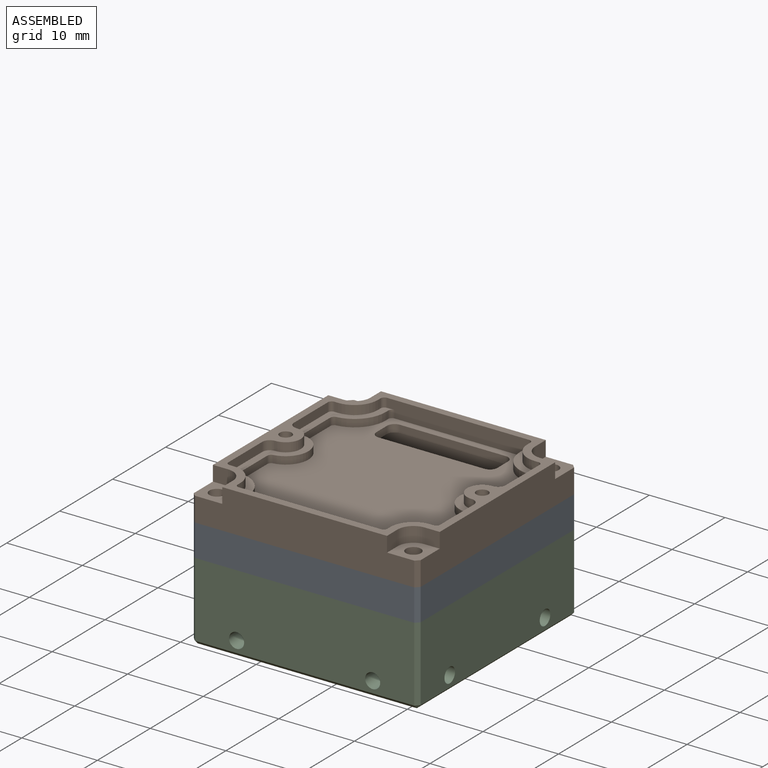
[diagram: assembled view]
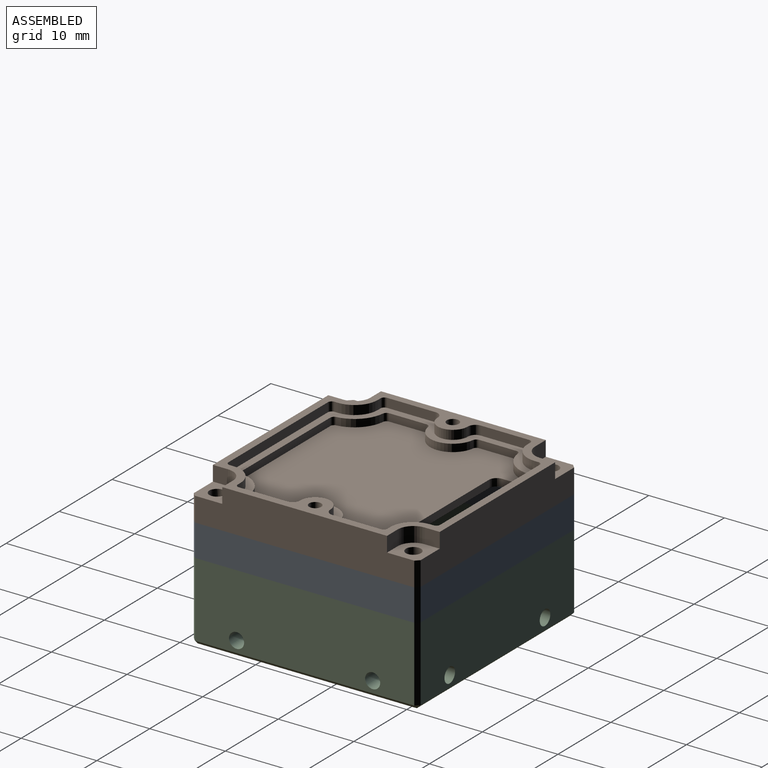
[diagram: assembled view, second angle]
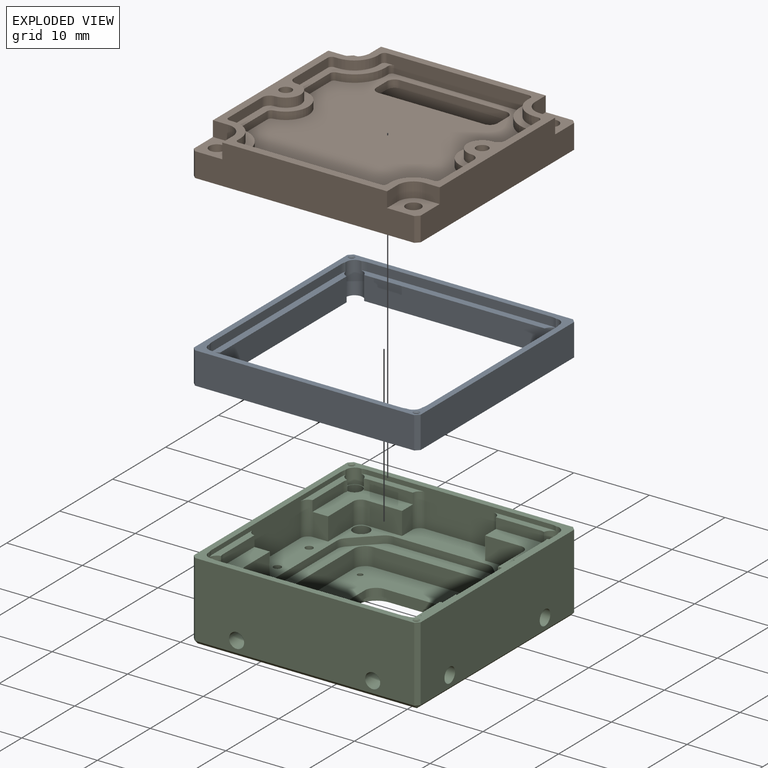
[diagram: exploded view]
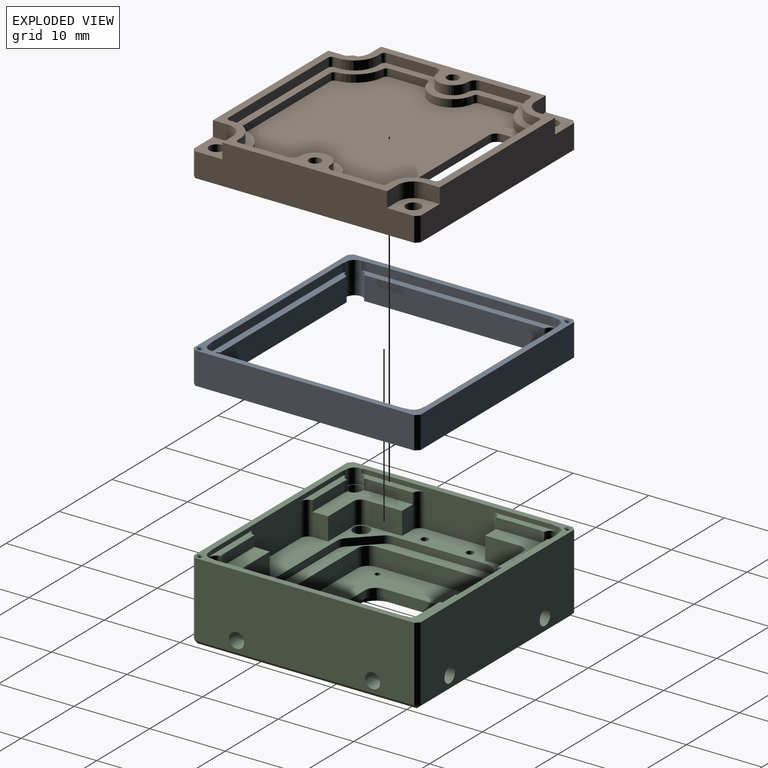
[diagram: exploded view, second angle]
ASSEMBLY  parts=3 mates=2
PART A: 38 faces, bbox 30x4.2x30 mm
  f0: plane 23.88x3.11mm, normal (1,0,0), area 74.2mm2, adj f5,f6,f13,f23
  f1: plane 23.88x3.11mm, normal (0,0,-1), area 74.2mm2, adj f6,f7,f13,f19
  f2: plane 23.88x3.11mm, normal (-1,0,0), area 74.2mm2, adj f7,f8,f13,f30
  f3: plane 23.88x3.11mm, normal (0,0,1), area 74.2mm2, adj f5,f8,f13,f27
  f4: plane 30x30mm, normal (0,1,0), area 94.1mm2, adj f5,f6,f7,f8,f9,f10,f11,f12
  f5: cylinder r=1.1mm len=4.23mm, axis (0,1,0), area 16.5mm2, adj f0,f3,f4,f13,f23,f25,f27,f29
  f6: cylinder r=1.1mm len=4.23mm, axis (0,1,0), area 16.5mm2, adj f0,f1,f4,f13,f19,f21,f23,f24
  f7: cylinder r=1.1mm len=4.23mm, axis (0,1,0), area 16.5mm2, adj f1,f2,f4,f13,f19,f20,f30,f32
  f8: cylinder r=1.1mm len=4.23mm, axis (0,1,0), area 16.5mm2, adj f2,f3,f4,f13,f27,f28,f30,f31
  f9: plane 29x4.23mm, normal (-1,0,0), area 122.7mm2, adj f4,f13,f14,f17
  f10: plane 29x4.23mm, normal (0,0,-1), area 122.7mm2, adj f4,f13,f16,f17
  f11: plane 29x4.23mm, normal (1,0,0), area 122.7mm2, adj f4,f13,f15,f16
  f12: plane 29x4.23mm, normal (0,0,1), area 122.7mm2, adj f4,f13,f14,f15
  f13: plane 30x30mm, normal (0,-1,0), area 182.9mm2, adj f0,f1,f2,f3,f5,f6,f7,f8
  f14: plane 4.23x0.5mm, normal (-0.71,0,0.71), area 3mm2, adj f4,f9,f12,f13
  f15: plane 4.23x0.5mm, normal (0.71,0,0.71), area 3mm2, adj f4,f11,f12,f13
  f16: plane 4.23x0.5mm, normal (0.71,0,-0.71), area 3mm2, adj f4,f10,f11,f13
  f17: plane 4.23x0.5mm, normal (-0.71,0,-0.71), area 3mm2, adj f4,f9,f10,f13
  f18: plane 24.4x1.13mm, normal (0,0,-1), area 27.4mm2, adj f4,f19,f20,f21
  f19: plane 25.71x0.9mm, normal (0,1,0), area 22.1mm2, adj f1,f6,f7,f18,f20,f21
  f20: cylinder r=2mm len=1.13mm, axis (0,1,0), area 0.7mm2, adj f4,f7,f18,f19
  f21: cylinder r=2mm len=1.13mm, axis (0,1,0), area 0.7mm2, adj f4,f6,f18,f19
  f22: plane 24.4x1.13mm, normal (1,0,0), area 27.4mm2, adj f4,f23,f24,f25
  f23: plane 25.71x0.9mm, normal (0,1,0), area 22.1mm2, adj f0,f5,f6,f22,f24,f25
  f24: cylinder r=2mm len=1.13mm, axis (0,1,0), area 0.7mm2, adj f4,f6,f22,f23
  f25: cylinder r=2mm len=1.13mm, axis (0,1,0), area 0.7mm2, adj f4,f5,f22,f23
  f26: plane 24.4x1.13mm, normal (0,0,1), area 27.4mm2, adj f4,f27,f28,f29
  f27: plane 25.71x0.9mm, normal (0,1,0), area 22.1mm2, adj f3,f5,f8,f26,f28,f29
  f28: cylinder r=2mm len=1.13mm, axis (0,1,0), area 0.7mm2, adj f4,f8,f26,f27
  f29: cylinder r=2mm len=1.13mm, axis (0,1,0), area 0.7mm2, adj f4,f5,f26,f27
  f30: plane 25.71x0.9mm, normal (0,1,0), area 22.1mm2, adj f2,f7,f8,f31,f32,f33
  f31: cylinder r=2mm len=1.13mm, axis (0,1,0), area 0.7mm2, adj f4,f8,f30,f33
  f32: cylinder r=2mm len=1.13mm, axis (0,1,0), area 0.7mm2, adj f4,f7,f30,f33
  f33: plane 24.4x1.13mm, normal (-1,0,0), area 27.4mm2, adj f4,f30,f31,f32
  f34: cylinder r=0.3mm len=4.03mm, axis (0,-1,0), area 7.6mm2, adj f13,f36
  f35: cylinder r=0.3mm len=4.03mm, axis (0,-1,0), area 7.6mm2, adj f13,f37
  f36: cone r=0.3mm half-angle=30deg, axis (0,1,0), area 0.5mm2, adj f4,f34
  f37: cone r=0.3mm half-angle=30deg, axis (0,1,0), area 0.5mm2, adj f4,f35
PART B: 110 faces, bbox 30x5.2x30 mm
  f0: plane 1.25x0.3mm, normal (0,-1,0), area 0.3mm2, adj f98,f101
  f1: cylinder r=1mm len=1mm, axis (0,-1,0), area 1.6mm2, adj f2,f8,f95,f99
  f2: plane 14x1mm, normal (-1,0,0), area 14mm2, adj f1,f3,f95,f99
  f3: cylinder r=1mm len=1mm, axis (0,-1,0), area 1.6mm2, adj f2,f4,f95,f99
  f4: plane 2x1mm, normal (0,0,1), area 2mm2, adj f3,f5,f95,f99
  f5: cylinder r=1mm len=1mm, axis (0,-1,0), area 1.6mm2, adj f4,f6,f95,f99
  f6: plane 14x1mm, normal (1,0,0), area 14mm2, adj f5,f7,f95,f99
  f7: cylinder r=1mm len=1mm, axis (0,-1,0), area 1.6mm2, adj f6,f8,f95,f99
  f8: plane 2x1mm, normal (0,0,-1), area 2mm2, adj f1,f7,f95,f99
  f9: cylinder r=1mm len=3.2mm, axis (0,-1,0), area 14.9mm2, adj f22,f35,f99,f100,f103
  f10: cylinder r=1mm len=3.2mm, axis (0,-1,0), area 14.9mm2, adj f22,f26,f99,f100,f101
  f11: plane 29x5.2mm, normal (-1,0,0), area 136.4mm2, adj f17,f19,f20,f22,f27,f28,f31,f34
  f12: plane 29x5.2mm, normal (0,0,-1), area 136.4mm2, adj f17,f20,f21,f22,f25,f26,f27,f29
  f13: plane 29x5.2mm, normal (1,0,0), area 136.4mm2, adj f17,f18,f21,f22,f23,f26,f35,f38
  f14: plane 29x5.2mm, normal (0,0,1), area 136.4mm2, adj f17,f18,f19,f22,f33,f34,f35,f36
  f15: cylinder r=1mm len=3.2mm, axis (0,-1,0), area 14.9mm2, adj f22,f27,f99,f101,f102
  f16: cylinder r=1mm len=3.2mm, axis (0,-1,0), area 14.9mm2, adj f22,f34,f99,f102,f103
  f17: plane 30x30mm, normal (0,-1,0), area 129.4mm2, adj f11,f12,f13,f14,f23,f24,f25,f28
  f18: plane 3.2x0.5mm, normal (0.71,0,0.71), area 2.3mm2, adj f13,f14,f22,f35
  f19: plane 3.2x0.5mm, normal (-0.71,0,0.71), area 2.3mm2, adj f11,f14,f22,f34
  f20: plane 3.2x0.5mm, normal (-0.71,0,-0.71), area 2.3mm2, adj f11,f12,f22,f27
  f21: plane 3.2x0.5mm, normal (0.71,0,-0.71), area 2.3mm2, adj f12,f13,f22,f26
  f22: plane 30x30mm, normal (0,1,0), area 165.3mm2, adj f9,f10,f11,f12,f13,f14,f15,f16
  f23: plane 2x2mm, normal (0,0,-1), area 4mm2, adj f13,f17,f24,f26
  f24: cylinder r=2.1mm len=2.1mm, axis (0,-1,0), area 6.6mm2, adj f17,f23,f25,f26
  f25: plane 2x2mm, normal (1,0,0), area 4mm2, adj f12,f17,f24,f26
  f26: plane 4.1x4.1mm, normal (0,-1,0), area 12.6mm2, adj f10,f12,f13,f21,f23,f24,f25
  f27: plane 4.1x4.1mm, normal (0,-1,0), area 12.6mm2, adj f11,f12,f15,f20,f28,f29,f30
  f28: plane 2x2mm, normal (0,0,-1), area 4mm2, adj f11,f17,f27,f30
  f29: plane 2x2mm, normal (-1,0,0), area 4mm2, adj f12,f17,f27,f30
  f30: cylinder r=2.1mm len=2.1mm, axis (0,-1,0), area 6.6mm2, adj f17,f27,f28,f29
  f31: plane 2x2mm, normal (0,0,1), area 4mm2, adj f11,f17,f32,f34
  f32: cylinder r=2.1mm len=2.1mm, axis (0,-1,0), area 6.6mm2, adj f17,f31,f33,f34
  f33: plane 2x2mm, normal (-1,0,0), area 4mm2, adj f14,f17,f32,f34
  f34: plane 4.1x4.1mm, normal (0,-1,0), area 12.6mm2, adj f11,f14,f16,f19,f31,f32,f33
  f35: plane 4.1x4.1mm, normal (0,-1,0), area 12.6mm2, adj f9,f13,f14,f18,f36,f37,f38
  f36: plane 2x2mm, normal (1,0,0), area 4mm2, adj f14,f17,f35,f37
  f37: cylinder r=2.1mm len=2.1mm, axis (0,-1,0), area 6.6mm2, adj f17,f35,f36,f38
  f38: plane 2x2mm, normal (0,0,1), area 4mm2, adj f13,f17,f35,f37
  f39: plane 6.4x1.2mm, normal (0,0,1), area 7.7mm2, adj f17,f40,f70,f71
  f40: cylinder r=1mm len=1.2mm, axis (0,-1,0), area 1.9mm2, adj f17,f39,f41,f71
  f41: cylinder r=2mm len=4mm, axis (0,-1,0), area 7.5mm2, adj f17,f40,f42,f71
  f42: cylinder r=1mm len=1.2mm, axis (0,-1,0), area 1.9mm2, adj f17,f41,f43,f71
  f43: plane 6.4x1.2mm, normal (0,0,1), area 7.7mm2, adj f17,f42,f44,f71
  f44: cylinder r=0.5mm len=1.2mm, axis (0,-1,0), area 0.9mm2, adj f17,f43,f45,f71
  f45: plane 1.2x0.5mm, normal (-1,0,0), area 0.6mm2, adj f17,f44,f46,f71
  f46: cylinder r=3.1mm len=3.1mm, axis (0,-1,0), area 5.8mm2, adj f17,f45,f47,f71
  f47: plane 1.2x0.5mm, normal (0,0,1), area 0.6mm2, adj f17,f46,f48,f71
  f48: cylinder r=0.5mm len=1.2mm, axis (0,-1,0), area 0.9mm2, adj f17,f47,f49,f71
  f49: plane 18.8x1.2mm, normal (-1,0,0), area 22.6mm2, adj f17,f48,f50,f71
  f50: cylinder r=0.5mm len=1.2mm, axis (0,-1,0), area 0.9mm2, adj f17,f49,f51,f71
  f51: plane 1.2x0.5mm, normal (0,0,-1), area 0.6mm2, adj f17,f50,f52,f71
  f52: cylinder r=3.1mm len=3.1mm, axis (0,-1,0), area 5.8mm2, adj f17,f51,f53,f71
  f53: plane 1.2x0.5mm, normal (-1,0,0), area 0.6mm2, adj f17,f52,f54,f71
  f54: cylinder r=0.5mm len=1.2mm, axis (0,-1,0), area 0.9mm2, adj f17,f53,f55,f71
  f55: plane 6.4x1.2mm, normal (0,0,-1), area 7.7mm2, adj f17,f54,f56,f71
  f56: cylinder r=1mm len=1.2mm, axis (0,-1,0), area 1.9mm2, adj f17,f55,f57,f71
  f57: cylinder r=2mm len=4mm, axis (0,-1,0), area 7.5mm2, adj f17,f56,f58,f71
  f58: cylinder r=1mm len=1.2mm, axis (0,-1,0), area 1.9mm2, adj f17,f57,f59,f71
  f59: plane 6.4x1.2mm, normal (0,0,-1), area 7.7mm2, adj f17,f58,f60,f71
  f60: cylinder r=0.5mm len=1.2mm, axis (0,-1,0), area 0.9mm2, adj f17,f59,f61,f71
  f61: plane 1.2x0.5mm, normal (1,0,0), area 0.6mm2, adj f17,f60,f62,f71
  f62: cylinder r=3.1mm len=3.1mm, axis (0,-1,0), area 5.8mm2, adj f17,f61,f63,f71
  f63: plane 1.2x0.5mm, normal (0,0,-1), area 0.6mm2, adj f17,f62,f64,f71
  f64: cylinder r=0.5mm len=1.2mm, axis (0,-1,0), area 0.9mm2, adj f17,f63,f65,f71
  f65: plane 18.8x2.2mm, normal (1,0,0), area 39.4mm2, adj f17,f64,f66,f71,f95,f104,f105
  f66: cylinder r=0.5mm len=1.2mm, axis (0,-1,0), area 0.9mm2, adj f17,f65,f67,f71
  f67: plane 1.2x0.5mm, normal (0,0,1), area 0.6mm2, adj f17,f66,f68,f71
  f68: cylinder r=3.1mm len=3.1mm, axis (0,-1,0), area 5.8mm2, adj f17,f67,f69,f71
  f69: plane 1.2x0.5mm, normal (1,0,0), area 0.6mm2, adj f17,f68,f70,f71
  f70: cylinder r=0.5mm len=1.2mm, axis (0,-1,0), area 0.9mm2, adj f17,f39,f69,f71
  f71: plane 28x28mm, normal (0,-1,0), area 91mm2, adj f39,f40,f41,f42,f43,f44,f45,f46
  f72: plane 1x0.5mm, normal (0,0,-1), area 0.5mm2, adj f71,f94,f95,f104
  f73: plane 1x0.5mm, normal (0,0,1), area 0.5mm2, adj f71,f74,f95,f105
  f74: cylinder r=4.1mm len=4.08mm, axis (0,-1,0), area 6mm2, adj f71,f73,f75,f95
  f75: cylinder r=0.5mm len=1mm, axis (0,-1,0), area 0.7mm2, adj f71,f74,f76,f95
  f76: plane 4.96x1mm, normal (0,0,1), area 5mm2, adj f71,f75,f77,f95
  f77: cylinder r=0.5mm len=1mm, axis (0,-1,0), area 0.7mm2, adj f71,f76,f78,f95
  f78: cylinder r=3mm len=5.94mm, axis (0,-1,0), area 8.6mm2, adj f71,f77,f79,f95
  f79: cylinder r=0.5mm len=1mm, axis (0,-1,0), area 0.7mm2, adj f71,f78,f80,f95
  f80: plane 4.96x1mm, normal (0,0,1), area 5mm2, adj f71,f79,f81,f95
  f81: cylinder r=0.5mm len=1mm, axis (0,-1,0), area 0.7mm2, adj f71,f80,f82,f95
  f82: cylinder r=4.1mm len=3.63mm, axis (0,-1,0), area 5.5mm2, adj f71,f81,f83,f95
  f83: cylinder r=0.5mm len=1mm, axis (0,-1,0), area 0.7mm2, adj f71,f82,f84,f95
  f84: plane 16.85x1mm, normal (-1,0,0), area 16.9mm2, adj f71,f83,f85,f95
  f85: cylinder r=0.5mm len=1mm, axis (0,-1,0), area 0.7mm2, adj f71,f84,f86,f95
  f86: cylinder r=4.1mm len=3.63mm, axis (0,-1,0), area 5.5mm2, adj f71,f85,f87,f95
  f87: cylinder r=0.5mm len=1mm, axis (0,-1,0), area 0.7mm2, adj f71,f86,f88,f95
  f88: plane 4.96x1mm, normal (0,0,-1), area 5mm2, adj f71,f87,f89,f95
  f89: cylinder r=0.5mm len=1mm, axis (0,-1,0), area 0.7mm2, adj f71,f88,f90,f95
  f90: cylinder r=3mm len=5.94mm, axis (0,-1,0), area 8.6mm2, adj f71,f89,f91,f95
  f91: cylinder r=0.5mm len=1mm, axis (0,-1,0), area 0.7mm2, adj f71,f90,f92,f95
  f92: plane 4.96x1mm, normal (0,0,-1), area 5mm2, adj f71,f91,f93,f95
  f93: cylinder r=0.5mm len=1mm, axis (0,-1,0), area 0.7mm2, adj f71,f92,f94,f95
  f94: cylinder r=4.1mm len=4.08mm, axis (0,-1,0), area 6mm2, adj f71,f72,f93,f95
  f95: plane 27x26mm, normal (0,-1,0), area 549mm2, adj f1,f2,f3,f4,f5,f6,f7,f8
  f96: cylinder r=0.8mm len=3.2mm, axis (0,-1,0), area 16.1mm2, adj f17,f97,f99
  f97: plane 1.25x0.3mm, normal (0,-1,0), area 0.3mm2, adj f96,f103
  f98: cylinder r=0.8mm len=3.2mm, axis (0,-1,0), area 16.1mm2, adj f0,f17,f99
  f99: plane 27x27mm, normal (0,1,0), area 654.4mm2, adj f1,f2,f3,f4,f5,f6,f7,f8
  f100: plane 24.27x2mm, normal (-1,0,0), area 48.5mm2, adj f9,f10,f22,f99
  f101: plane 24.27x2mm, normal (0,0,1), area 48.5mm2, adj f0,f10,f15,f22,f99
  f102: plane 24.27x2mm, normal (1,0,0), area 48.5mm2, adj f15,f16,f22,f99
  f103: plane 24.27x2mm, normal (0,0,-1), area 48.5mm2, adj f9,f16,f22,f97,f99
  f104: cylinder r=0.5mm len=1mm, axis (0,1,0), area 0.8mm2, adj f65,f71,f72,f95
  f105: cylinder r=0.5mm len=1mm, axis (0,1,0), area 0.8mm2, adj f65,f71,f73,f95
  f106: cylinder r=0.3mm len=1.9mm, axis (0,1,0), area 3.6mm2, adj f22,f107
  f107: plane 0.6x0.6mm, normal (0,1,0), area 0.3mm2, adj f106
  f108: cylinder r=0.3mm len=1.9mm, axis (0,1,0), area 3.6mm2, adj f22,f109
  f109: plane 0.6x0.6mm, normal (0,1,0), area 0.3mm2, adj f108
PART C: 192 faces, bbox 30x30x10.4 mm
  f0: plane 28.4x28.4mm, normal (0,0,1), area 193.9mm2, adj f31,f32,f33,f34,f35,f36,f37,f38
  f1: plane 29x9.9mm, normal (0,1,0), area 280.8mm2, adj f5,f130,f131,f132,f174,f176
  f2: plane 29x9.9mm, normal (-1,0,0), area 280.8mm2, adj f5,f130,f135,f136,f170,f172
  f3: plane 29x9.9mm, normal (0,-1,0), area 280.8mm2, adj f5,f136,f137,f141,f166,f168
  f4: plane 29x9.9mm, normal (1,0,0), area 280.8mm2, adj f5,f131,f137,f138,f162,f164
  f5: plane 30x30mm, normal (0,0,1), area 94.1mm2, adj f1,f2,f3,f4,f8,f9,f12,f13
  f6: cylinder r=2mm len=1.4mm, axis (0,0,1), area 0.9mm2, adj f41,f123,f128,f156
  f7: cylinder r=2mm len=1.4mm, axis (0,0,1), area 0.9mm2, adj f23,f46,f125,f154
  f8: cylinder r=2mm len=0.65mm, axis (0,0,1), area 0.4mm2, adj f5,f23,f111,f154
  f9: cylinder r=2mm len=0.65mm, axis (0,0,1), area 0.4mm2, adj f5,f113,f128,f156
  f10: cylinder r=2mm len=1.4mm, axis (0,0,1), area 0.9mm2, adj f27,f42,f123,f156
  f11: cylinder r=2mm len=1.4mm, axis (0,0,1), area 0.9mm2, adj f45,f125,f126,f154
  f12: cylinder r=2mm len=0.65mm, axis (0,0,1), area 0.4mm2, adj f5,f110,f126,f154
  f13: cylinder r=2mm len=0.65mm, axis (0,0,1), area 0.4mm2, adj f5,f27,f112,f156
  f14: cylinder r=1mm len=8.4mm, axis (0,0,-1), area 52.8mm2, adj f18,f122
  f15: cylinder r=1mm len=8.4mm, axis (0,0,-1), area 52.8mm2, adj f18,f123
  f16: cylinder r=1mm len=8.4mm, axis (0,0,-1), area 52.8mm2, adj f18,f124
  f17: cylinder r=1mm len=8.4mm, axis (0,0,-1), area 52.8mm2, adj f18,f125
  f18: plane 29x29mm, normal (0,0,-1), area 664.7mm2, adj f14,f15,f16,f17,f99,f100,f101,f102
  f19: cylinder r=2mm len=1.4mm, axis (0,0,1), area 0.9mm2, adj f40,f122,f129,f157
  f20: cylinder r=2mm len=1.4mm, axis (0,0,1), area 0.9mm2, adj f28,f39,f122,f157
  f21: cylinder r=2mm len=1.4mm, axis (0,0,1), area 0.9mm2, adj f24,f43,f124,f155
  f22: cylinder r=2mm len=1.4mm, axis (0,0,1), area 0.9mm2, adj f44,f124,f127,f155
  f23: plane 8.35x1mm, normal (0,0,1), area 6.3mm2, adj f7,f8,f31,f46,f111,f154
  f24: plane 8.35x1mm, normal (0,0,1), area 6.3mm2, adj f21,f25,f33,f43,f112,f155
  f25: cylinder r=2mm len=0.65mm, axis (0,0,1), area 0.4mm2, adj f5,f24,f112,f155
  f26: cylinder r=2mm len=0.65mm, axis (0,0,1), area 0.4mm2, adj f5,f111,f127,f155
  f27: plane 8.35x1mm, normal (0,0,1), area 6.3mm2, adj f10,f13,f34,f42,f112,f156
  f28: plane 8.35x1mm, normal (0,0,1), area 6.3mm2, adj f20,f30,f38,f39,f113,f157
  f29: cylinder r=2mm len=0.65mm, axis (0,0,1), area 0.4mm2, adj f5,f110,f129,f157
  f30: cylinder r=2mm len=0.65mm, axis (0,0,1), area 0.4mm2, adj f5,f28,f113,f157
  f31: cylinder r=1mm len=4.4mm, axis (0,0,1), area 6.8mm2, adj f0,f23,f46,f56,f111,f125
  f32: cylinder r=1mm len=4.4mm, axis (0,0,1), area 6.8mm2, adj f0,f44,f57,f111,f124,f127
  f33: cylinder r=1mm len=4.4mm, axis (0,0,1), area 6.8mm2, adj f0,f24,f43,f61,f112,f124
  f34: cylinder r=1mm len=4.4mm, axis (0,0,1), area 6.8mm2, adj f0,f27,f42,f62,f112,f123
  f35: cylinder r=1mm len=4.4mm, axis (0,0,1), area 6.8mm2, adj f0,f40,f51,f110,f122,f129
  f36: cylinder r=1mm len=4.4mm, axis (0,0,1), area 6.8mm2, adj f0,f45,f52,f110,f125,f126
  f37: cylinder r=1mm len=4.4mm, axis (0,0,1), area 6.8mm2, adj f0,f41,f66,f113,f123,f128
  f38: cylinder r=1mm len=4.4mm, axis (0,0,1), area 6.8mm2, adj f0,f28,f39,f47,f113,f122
  f39: plane 5.81x1.4mm, normal (0,1,0), area 8.1mm2, adj f20,f28,f38,f122
  f40: plane 5.81x1.4mm, normal (-1,0,0), area 8.1mm2, adj f19,f35,f122,f129
  f41: plane 5.81x1.4mm, normal (0,1,0), area 8.1mm2, adj f6,f37,f123,f128
  f42: plane 5.81x1.4mm, normal (1,0,0), area 8.1mm2, adj f10,f27,f34,f123
  f43: plane 5.81x1.4mm, normal (1,0,0), area 8.1mm2, adj f21,f24,f33,f124
  f44: plane 5.81x1.4mm, normal (0,-1,0), area 8.1mm2, adj f22,f32,f124,f127
  f45: plane 5.81x1.4mm, normal (-1,0,0), area 8.1mm2, adj f11,f36,f125,f126
  f46: plane 5.81x1.4mm, normal (0,-1,0), area 8.1mm2, adj f7,f23,f31,f125
  f47: plane 3x1.95mm, normal (-1,0,0), area 5.8mm2, adj f0,f38,f48,f122
  f48: plane 4.75x3mm, normal (0,1,0), area 14.2mm2, adj f0,f47,f49,f122
  f49: cylinder r=1mm len=3mm, axis (0,0,1), area 4.7mm2, adj f0,f48,f50,f122
  f50: plane 4.75x3mm, normal (-1,0,0), area 14.2mm2, adj f0,f49,f51,f122
  f51: plane 3x1.95mm, normal (0,1,0), area 5.8mm2, adj f0,f35,f50,f122
  f52: plane 3x1.95mm, normal (0,-1,0), area 5.8mm2, adj f0,f36,f53,f125
  f53: plane 4.75x3mm, normal (-1,0,0), area 14.2mm2, adj f0,f52,f54,f125
  f54: cylinder r=1mm len=3mm, axis (0,0,1), area 4.7mm2, adj f0,f53,f55,f125
  f55: plane 4.75x3mm, normal (0,-1,0), area 14.2mm2, adj f0,f54,f56,f125
  f56: plane 3x1.95mm, normal (-1,0,0), area 5.8mm2, adj f0,f31,f55,f125
  f57: plane 3x1.95mm, normal (1,0,0), area 5.8mm2, adj f0,f32,f58,f124
  f58: plane 4.75x3mm, normal (0,-1,0), area 14.2mm2, adj f0,f57,f59,f124
  f59: cylinder r=1mm len=3mm, axis (0,0,1), area 4.7mm2, adj f0,f58,f60,f124
  f60: plane 4.75x3mm, normal (1,0,0), area 14.2mm2, adj f0,f59,f61,f124
  f61: plane 3x1.95mm, normal (0,-1,0), area 5.8mm2, adj f0,f33,f60,f124
  f62: plane 3x1.95mm, normal (0,1,0), area 5.8mm2, adj f0,f34,f63,f123
  f63: plane 4.75x3mm, normal (1,0,0), area 14.2mm2, adj f0,f62,f64,f123
  f64: cylinder r=1mm len=3mm, axis (0,0,1), area 4.7mm2, adj f0,f63,f65,f123
  f65: plane 4.75x3mm, normal (0,1,0), area 14.2mm2, adj f0,f64,f66,f123
  f66: plane 3x1.95mm, normal (1,0,0), area 5.8mm2, adj f0,f37,f65,f123
  f67: plane 2.85x2.85mm, normal (-0.71,-0.71,0), area 4mm2, adj f0,f68,f82,f109
  f68: cylinder r=1.5mm len=1.06mm, axis (0,0,1), area 1.2mm2, adj f0,f67,f69,f109
  f69: plane 12.5x1mm, normal (0,-1,0), area 12.5mm2, adj f0,f68,f70,f109
  f70: cylinder r=1.5mm len=1.06mm, axis (0,0,1), area 1.2mm2, adj f0,f69,f71,f109
  f71: plane 2.85x2.85mm, normal (0.71,-0.71,0), area 4mm2, adj f0,f70,f72,f109
  f72: cylinder r=1.5mm len=1.06mm, axis (0,0,1), area 1.2mm2, adj f0,f71,f73,f109
  f73: plane 12.5x1mm, normal (1,0,0), area 12.5mm2, adj f0,f72,f74,f109
  f74: cylinder r=1.5mm len=1.06mm, axis (0,0,1), area 1.2mm2, adj f0,f73,f75,f109
  f75: plane 2.85x2.85mm, normal (0.71,0.71,0), area 4mm2, adj f0,f74,f76,f109
  f76: cylinder r=1.5mm len=1.06mm, axis (0,0,1), area 1.2mm2, adj f0,f75,f77,f109
  f77: plane 12.5x1mm, normal (0,1,0), area 12.5mm2, adj f0,f76,f78,f109
  f78: cylinder r=1.5mm len=1.06mm, axis (0,0,1), area 1.2mm2, adj f0,f77,f79,f109
  f79: plane 2.85x2.85mm, normal (-0.71,0.71,0), area 4mm2, adj f0,f78,f80,f109
  f80: cylinder r=1.5mm len=1.06mm, axis (0,0,1), area 1.2mm2, adj f0,f79,f81,f109
  f81: plane 12.5x1mm, normal (-1,0,0), area 12.5mm2, adj f0,f80,f82,f109
  f82: cylinder r=1.5mm len=1.06mm, axis (0,0,1), area 1.2mm2, adj f0,f67,f81,f109
  f83: plane 14.8x2.4mm, normal (-1,0,0), area 35.5mm2, adj f84,f90,f108,f109
  f84: cylinder r=1.5mm len=2.4mm, axis (0,0,1), area 5.7mm2, adj f83,f85,f108,f109
  f85: plane 14.8x2.4mm, normal (0,-1,0), area 35.5mm2, adj f84,f86,f108,f109
  f86: cylinder r=1.5mm len=2.4mm, axis (0,0,1), area 5.7mm2, adj f85,f87,f108,f109
  f87: plane 14.8x2.4mm, normal (1,0,0), area 35.5mm2, adj f86,f88,f108,f109
  f88: cylinder r=1.5mm len=2.4mm, axis (0,0,1), area 5.7mm2, adj f87,f89,f108,f109
  f89: plane 14.8x2.4mm, normal (0,1,0), area 35.5mm2, adj f88,f90,f108,f109
  f90: cylinder r=1.5mm len=2.4mm, axis (0,0,1), area 5.7mm2, adj f83,f89,f108,f109
  f91: cylinder r=1.5mm len=1.5mm, axis (0,0,-1), area 2.4mm2, adj f92,f98,f107,f108
  f92: plane 7x1mm, normal (-1,0,0), area 7mm2, adj f91,f93,f107,f108
  f93: cylinder r=1.5mm len=1.5mm, axis (0,0,-1), area 2.4mm2, adj f92,f94,f107,f108
  f94: plane 7x1mm, normal (0,1,0), area 7mm2, adj f93,f95,f107,f108
  f95: cylinder r=1.5mm len=1.5mm, axis (0,0,-1), area 2.4mm2, adj f94,f96,f107,f108
  f96: plane 7x1mm, normal (1,0,0), area 7mm2, adj f95,f97,f107,f108
  f97: cylinder r=1.5mm len=1.5mm, axis (0,0,-1), area 2.4mm2, adj f96,f98,f107,f108
  f98: plane 7x1mm, normal (0,-1,0), area 7mm2, adj f91,f97,f107,f108
  f99: cylinder r=2.5mm len=2.5mm, axis (0,0,-1), area 3.9mm2, adj f18,f100,f106,f107
  f100: plane 7x1mm, normal (1,0,0), area 7mm2, adj f18,f99,f101,f107
  f101: cylinder r=2.5mm len=2.5mm, axis (0,0,-1), area 3.9mm2, adj f18,f100,f102,f107
  f102: plane 7x1mm, normal (0,-1,0), area 7mm2, adj f18,f101,f103,f107
  f103: cylinder r=2.5mm len=2.5mm, axis (0,0,-1), area 3.9mm2, adj f18,f102,f104,f107
  f104: plane 7x1mm, normal (-1,0,0), area 7mm2, adj f18,f103,f105,f107
  f105: cylinder r=2.5mm len=2.5mm, axis (0,0,-1), area 3.9mm2, adj f18,f104,f106,f107
  f106: plane 7x1mm, normal (0,1,0), area 7mm2, adj f18,f99,f105,f107
  f107: plane 12x12mm, normal (0,0,-1), area 40.6mm2, adj f91,f92,f93,f94,f95,f96,f97,f98
  f108: plane 17.8x17.8mm, normal (0,0,1), area 216.1mm2, adj f83,f84,f85,f86,f87,f88,f89,f90
  f109: plane 21.2x21.2mm, normal (0,0,1), area 106.3mm2, adj f67,f68,f69,f70,f71,f72,f73,f74
  f110: plane 24.4x5mm, normal (-1,0,0), area 54.2mm2, adj f0,f5,f12,f29,f35,f36,f126,f129
  f111: plane 24.4x5mm, normal (0,-1,0), area 54.2mm2, adj f0,f5,f8,f23,f26,f31,f32,f127
  f112: plane 24.4x5mm, normal (1,0,0), area 54.2mm2, adj f0,f5,f13,f24,f25,f27,f33,f34
  f113: plane 24.4x5mm, normal (0,1,0), area 54.2mm2, adj f0,f5,f9,f28,f30,f37,f38,f128
  f114: plane 2.2x2.2mm, normal (0,0,1), area 0.7mm2, adj f115,f145
  f115: cylinder r=1.1mm len=2.2mm, axis (0,0,1), area 6.9mm2, adj f0,f114
  f116: plane 2.2x2.2mm, normal (0,0,1), area 0.7mm2, adj f117,f143
  f117: cylinder r=1.1mm len=2.2mm, axis (0,0,1), area 6.9mm2, adj f0,f116
  f118: plane 2.2x2.2mm, normal (0,0,1), area 0.7mm2, adj f119,f144
  f119: cylinder r=1.1mm len=2.2mm, axis (0,0,1), area 6.9mm2, adj f0,f118
  f120: plane 2.2x2.2mm, normal (0,0,1), area 0.7mm2, adj f121,f142
  f121: cylinder r=1.1mm len=2.2mm, axis (0,0,1), area 6.9mm2, adj f0,f120
  f122: plane 8.61x8.61mm, normal (0,0,1), area 26.9mm2, adj f14,f19,f20,f35,f38,f39,f40,f47
  f123: plane 8.61x8.61mm, normal (0,0,1), area 26.9mm2, adj f6,f10,f15,f34,f37,f41,f42,f62
  f124: plane 8.61x8.61mm, normal (0,0,1), area 26.9mm2, adj f16,f21,f22,f32,f33,f43,f44,f57
  f125: plane 8.61x8.61mm, normal (0,0,1), area 26.9mm2, adj f7,f11,f17,f31,f36,f45,f46,f52
  f126: plane 8.35x1mm, normal (0,0,1), area 6.3mm2, adj f11,f12,f36,f45,f110,f154
  f127: plane 8.35x1mm, normal (0,0,1), area 6.3mm2, adj f22,f26,f32,f44,f111,f155
  f128: plane 8.35x1mm, normal (0,0,1), area 6.3mm2, adj f6,f9,f37,f41,f113,f156
  f129: plane 8.35x1mm, normal (0,0,1), area 6.3mm2, adj f19,f29,f35,f40,f110,f157
  f130: plane 9.9x0.5mm, normal (-0.71,0.71,0), area 7mm2, adj f1,f2,f5,f133
  f131: plane 9.9x0.5mm, normal (0.71,0.71,0), area 7mm2, adj f1,f4,f5,f134
  f132: plane 29x0.5mm, normal (0,0.71,-0.71), area 20.5mm2, adj f1,f18,f133,f134
  f133: plane 0.5x0.5mm, normal (-0.58,0.58,-0.58), area 0.2mm2, adj f130,f132,f135
  f134: plane 0.5x0.5mm, normal (0.58,0.58,-0.58), area 0.2mm2, adj f131,f132,f138
  f135: plane 29x0.5mm, normal (-0.71,0,-0.71), area 20.5mm2, adj f2,f18,f133,f139
  f136: plane 9.9x0.5mm, normal (-0.71,-0.71,0), area 7mm2, adj f2,f3,f5,f139
  f137: plane 9.9x0.5mm, normal (0.71,-0.71,0), area 7mm2, adj f3,f4,f5,f140
  f138: plane 29x0.5mm, normal (0.71,0,-0.71), area 20.5mm2, adj f4,f18,f134,f140
  f139: plane 0.5x0.5mm, normal (-0.58,-0.58,-0.58), area 0.2mm2, adj f135,f136,f141
  f140: plane 0.5x0.5mm, normal (0.58,-0.58,-0.58), area 0.2mm2, adj f137,f138,f141
  f141: plane 29x0.5mm, normal (0,-0.71,-0.71), area 20.5mm2, adj f3,f18,f139,f140
  f142: cylinder r=1mm len=4.4mm, axis (0,0,1), area 27.6mm2, adj f18,f120
  f143: cylinder r=1mm len=4.4mm, axis (0,0,1), area 27.6mm2, adj f18,f116
  f144: cylinder r=1mm len=4.4mm, axis (0,0,1), area 27.6mm2, adj f18,f118
  f145: cylinder r=1mm len=4.4mm, axis (0,0,1), area 27.6mm2, adj f18,f114
  f146: cylinder r=1mm len=3.5mm, axis (0,0,-1), area 22mm2, adj f18,f147
  f147: plane 2x2mm, normal (0,0,-1), area 3.1mm2, adj f146
  f148: cylinder r=1mm len=3.5mm, axis (0,0,-1), area 22mm2, adj f18,f149
  f149: plane 2x2mm, normal (0,0,-1), area 3.1mm2, adj f148
  f150: cylinder r=1mm len=3.5mm, axis (0,0,-1), area 22mm2, adj f18,f151
  f151: plane 2x2mm, normal (0,0,-1), area 3.1mm2, adj f150
  f152: cylinder r=1mm len=3.5mm, axis (0,0,-1), area 22mm2, adj f18,f153
  f153: plane 2x2mm, normal (0,0,-1), area 3.1mm2, adj f152
  f154: cylinder r=1.1mm len=2.18mm, axis (0,0,1), area 7.9mm2, adj f5,f7,f8,f11,f12,f23,f125,f126
  f155: cylinder r=1.1mm len=2.18mm, axis (0,0,1), area 7.9mm2, adj f5,f21,f22,f24,f25,f26,f124,f127
  f156: cylinder r=1.1mm len=2.18mm, axis (0,0,1), area 7.9mm2, adj f5,f6,f9,f10,f13,f27,f123,f128
  f157: cylinder r=1.1mm len=2.18mm, axis (0,0,1), area 7.9mm2, adj f5,f19,f20,f28,f29,f30,f122,f129
  f158: cylinder r=0.35mm len=1.2mm, axis (0,0,1), area 2.6mm2, adj f108,f159
  f159: plane 0.7x0.7mm, normal (0,0,1), area 0.4mm2, adj f158
  f160: cylinder r=0.35mm len=1.2mm, axis (0,0,1), area 2.6mm2, adj f108,f161
  f161: plane 0.7x0.7mm, normal (0,0,1), area 0.4mm2, adj f160
  f162: cylinder r=1mm len=2.8mm, axis (1,0,0), area 17.6mm2, adj f4,f163
  f163: plane 2x2mm, normal (1,0,0), area 3.1mm2, adj f162
  f164: cylinder r=1mm len=2.8mm, axis (1,0,0), area 17.6mm2, adj f4,f165
  f165: plane 2x2mm, normal (1,0,0), area 3.1mm2, adj f164
  f166: cylinder r=1mm len=2.8mm, axis (0,-1,0), area 17.6mm2, adj f3,f167
  f167: plane 2x2mm, normal (0,-1,0), area 3.1mm2, adj f166
  f168: cylinder r=1mm len=2.8mm, axis (0,-1,0), area 17.6mm2, adj f3,f169
  f169: plane 2x2mm, normal (0,-1,0), area 3.1mm2, adj f168
  f170: cylinder r=1mm len=2.8mm, axis (-1,0,0), area 17.6mm2, adj f2,f171
  f171: plane 2x2mm, normal (-1,0,0), area 3.1mm2, adj f170
  f172: cylinder r=1mm len=2.8mm, axis (-1,0,0), area 17.6mm2, adj f2,f173
  f173: plane 2x2mm, normal (-1,0,0), area 3.1mm2, adj f172
  f174: cylinder r=1mm len=2.8mm, axis (0,1,0), area 17.6mm2, adj f1,f175
  f175: plane 2x2mm, normal (0,1,0), area 3.1mm2, adj f174
  f176: cylinder r=1mm len=2.8mm, axis (0,1,0), area 17.6mm2, adj f1,f177
  f177: plane 2x2mm, normal (0,1,0), area 3.1mm2, adj f176
  f178: cylinder r=0.3mm len=1.8mm, axis (0,0,1), area 3.4mm2, adj f179,f190
  f179: plane 0.6x0.6mm, normal (0,0,1), area 0.3mm2, adj f178
  f180: cylinder r=0.3mm len=1.8mm, axis (0,0,1), area 3.4mm2, adj f181,f191
  f181: plane 0.6x0.6mm, normal (0,0,1), area 0.3mm2, adj f180
  f182: cylinder r=0.5mm len=3.5mm, axis (0,0,1), area 11mm2, adj f0,f183
  f183: plane 1x1mm, normal (0,0,1), area 0.8mm2, adj f182
  f184: cylinder r=0.5mm len=3.5mm, axis (0,0,1), area 11mm2, adj f0,f185
  f185: plane 1x1mm, normal (0,0,1), area 0.8mm2, adj f184
  f186: cylinder r=0.5mm len=3.5mm, axis (0,0,1), area 11mm2, adj f0,f187
  f187: plane 1x1mm, normal (0,0,1), area 0.8mm2, adj f186
  f188: cylinder r=0.5mm len=3.5mm, axis (0,0,1), area 11mm2, adj f0,f189
  f189: plane 1x1mm, normal (0,0,1), area 0.8mm2, adj f188
  f190: cone r=0.3mm half-angle=30deg, axis (0,0,1), area 0.5mm2, adj f5,f178
  f191: cone r=0.3mm half-angle=30deg, axis (0,0,1), area 0.5mm2, adj f5,f180
PLACE A rot(axis=(0.58,-0.58,-0.58),120deg) t=(-0.06,-0.05,9.41)mm fixed
PLACE B rot(axis=(-0.58,0.58,-0.58),120deg) t=(-0.06,-0.05,14.61)mm
PLACE C t=(-0.06,-0.05,-5.22)mm
MATE cylindrical A.f34 <-> C.f178  axis (0,0,-1) through (-14.36,14.25,5.18)mm
MATE cylindrical B.f106 <-> A.f34  axis (0,0,-1) through (-14.36,14.25,9.41)mm
